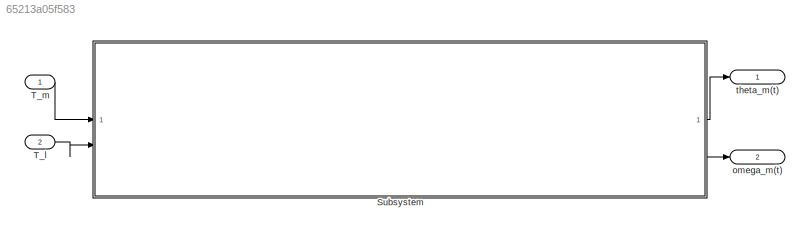
MODEL slx_65213a05f583
KIND model
CONFIG AbsTol = auto
CONFIG EnableMultiTasking = off
CONFIG FixedStep = auto
CONFIG MaxStep = auto
CONFIG MinStep = auto
CONFIG RelTol = 1e-3
CONFIG SampleTimeConstraint = Unconstrained
CONFIG SolverName = VariableStepAuto
CONFIG StartTime = 0.0
CONFIG StopTime = 10.0
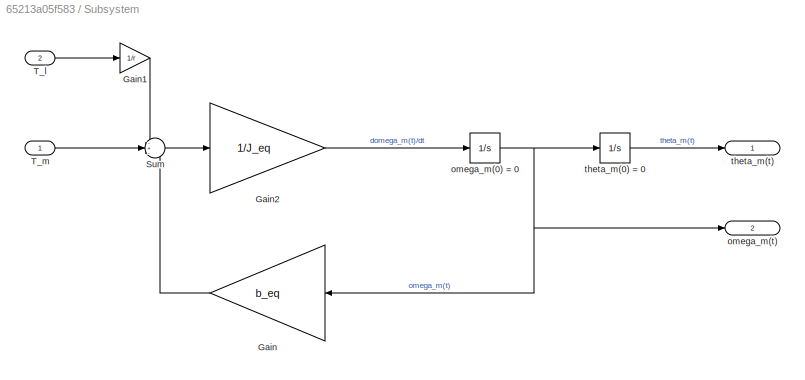
BLOCK [SubSystem] Subsystem
BLOCK [Gain] Subsystem/Gain
  Gain = b_eq
  NameLocation = top
BLOCK [Gain] Subsystem/Gain1
  Gain = 1/r
BLOCK [Gain] Subsystem/Gain2
  Gain = 1/J_eq
BLOCK [Sum] Subsystem/Sum
  Inputs = -+-
BLOCK [Inport] Subsystem/T_l
  Port = 2
BLOCK [Inport] Subsystem/T_m
BLOCK [Integrator] Subsystem/omega_m(0) = 0
BLOCK [Outport] Subsystem/omega_m(t)
  Port = 2
BLOCK [Integrator] Subsystem/theta_m(0) = 0
BLOCK [Outport] Subsystem/theta_m(t)
BLOCK [Inport] T_l
  Port = 2
BLOCK [Inport] T_m
BLOCK [Outport] omega_m(t)
  Port = 2
BLOCK [Outport] theta_m(t)
LINE Subsystem/Gain1:1 -> Subsystem/Sum:1
LINE Subsystem/Gain2:1 -> Subsystem/omega_m(0) = 0:1
LINE Subsystem/Gain:1 -> Subsystem/Sum:3
LINE Subsystem/Sum:1 -> Subsystem/Gain2:1
LINE Subsystem/T_l:1 -> Subsystem/Gain1:1
LINE Subsystem/T_m:1 -> Subsystem/Sum:2
NET Subsystem/omega_m(0) = 0:1 -> Subsystem/Gain:1, Subsystem/omega_m(t):1, Subsystem/theta_m(0) = 0:1
LINE Subsystem/theta_m(0) = 0:1 -> Subsystem/theta_m(t):1
LINE Subsystem:1 -> theta_m(t):1
LINE Subsystem:2 -> omega_m(t):1
LINE T_l:1 -> Subsystem:2
LINE T_m:1 -> Subsystem:1
note: NET lines group one-source signal fan-out (src -> all destinations, sorted); 1:1 wires keep LINE
